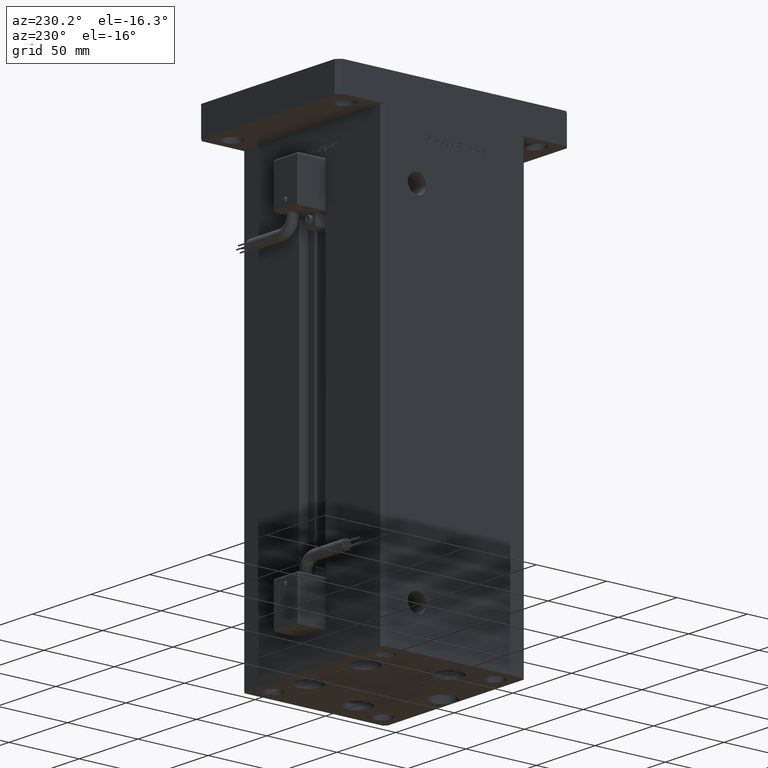
[diagram: clean part render]
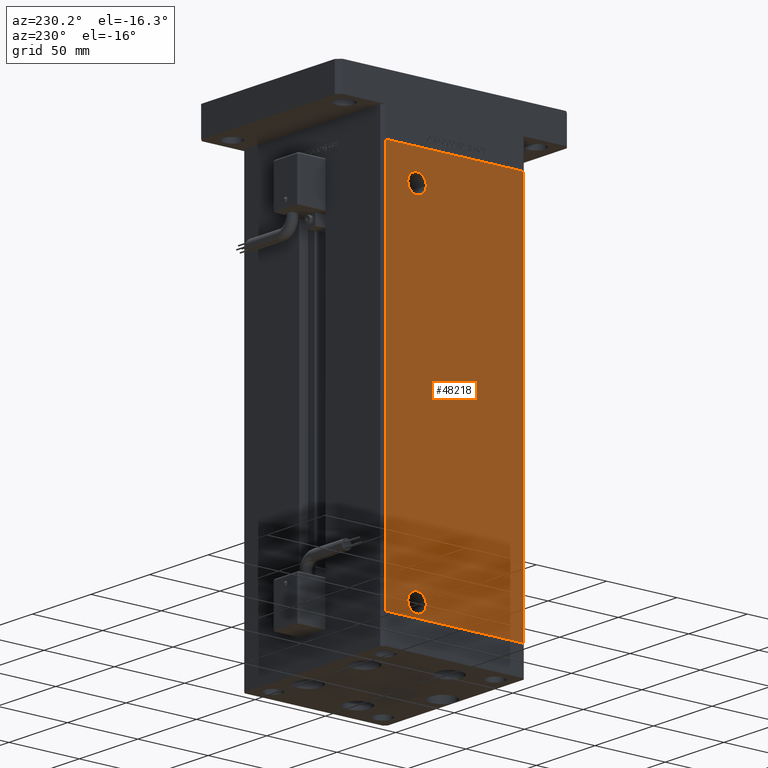
[diagram: same view with one face highlighted and labeled with its STEP entity id]
A machine part, auxiliary view. The second image highlights one B-rep face of the part: STEP entity #48218.
In plain terms, the highlighted planar face has unit normal (1, 0, 0).
Its self-contained STEP definition (entity closure, byte-faithful):
#682 = CARTESIAN_POINT ( 'NONE',  ( -60.00000000000001421, 49.00000000000000000, 268.5000000000000000 ) ) ;
#1014 = VECTOR ( 'NONE', #43434, 1000.000000000000000 ) ;
#1134 = LINE ( 'NONE', #19641, #44845 ) ;
#2334 = AXIS2_PLACEMENT_3D ( 'NONE', #53792, #13624, #31508 ) ;
#3633 = DIRECTION ( 'NONE',  ( 0.000000000000000000, -1.000000000000000000, 0.000000000000000000 ) ) ;
#4017 = LINE ( 'NONE', #26611, #17677 ) ;
#5252 = DIRECTION ( 'NONE',  ( 2.832201593431521726E-16, -1.000000000000000000, 0.000000000000000000 ) ) ;
#5618 = EDGE_LOOP ( 'NONE', ( #57143, #44848 ) ) ;
#5840 = CARTESIAN_POINT ( 'NONE',  ( -60.00000000000000711, 19.91999999999996263, 247.5000000000000000 ) ) ;
#6394 = VERTEX_POINT ( 'NONE', #49049 ) ;
#7297 = DIRECTION ( 'NONE',  ( 2.832201593431521726E-16, -1.000000000000000000, 0.000000000000000000 ) ) ;
#7320 = DIRECTION ( 'NONE',  ( -1.000000000000000000, -2.275047181608927644E-16, 0.000000000000000000 ) ) ;
#7644 = VERTEX_POINT ( 'NONE', #46595 ) ;
#7975 = EDGE_CURVE ( 'NONE', #20874, #7644, #10066, .T. ) ;
#9233 = EDGE_CURVE ( 'NONE', #33323, #6394, #4017, .T. ) ;
#9290 = ORIENTED_EDGE ( 'NONE', *, *, #53695, .F. ) ;
#10066 = CIRCLE ( 'NONE', #28794, 6.580000000000044480 ) ;
#11048 = CARTESIAN_POINT ( 'NONE',  ( -60.00000000000000711, 26.50000000000000711, 247.5000000000000000 ) ) ;
#13624 = DIRECTION ( 'NONE',  ( -1.000000000000000000, -2.275047181608927644E-16, 0.000000000000000000 ) ) ;
#13719 = CIRCLE ( 'NONE', #20300, 6.580000000000044480 ) ;
#13879 = ORIENTED_EDGE ( 'NONE', *, *, #26138, .T. ) ;
#14027 = VERTEX_POINT ( 'NONE', #39365 ) ;
#14054 = ORIENTED_EDGE ( 'NONE', *, *, #16001, .F. ) ;
#15470 = CIRCLE ( 'NONE', #2334, 6.580000000000002736 ) ;
#16001 = EDGE_CURVE ( 'NONE', #24071, #33323, #1134, .T. ) ;
#17253 = CIRCLE ( 'NONE', #21031, 6.580000000000002736 ) ;
#17488 = FACE_BOUND ( 'NONE', #5618, .T. ) ;
#17677 = VECTOR ( 'NONE', #39227, 1000.000000000000000 ) ;
#18864 = AXIS2_PLACEMENT_3D ( 'NONE', #39178, #57088, #35363 ) ;
#19641 = CARTESIAN_POINT ( 'NONE',  ( -60.00000000000001421, 49.00000000000000000, 268.5000000000000000 ) ) ;
#19676 = EDGE_CURVE ( 'NONE', #24071, #14027, #39032, .T. ) ;
#20300 = AXIS2_PLACEMENT_3D ( 'NONE', #11048, #24833, #24551 ) ;
#20874 = VERTEX_POINT ( 'NONE', #5840 ) ;
#21031 = AXIS2_PLACEMENT_3D ( 'NONE', #29606, #7320, #43090 ) ;
#21313 = FACE_OUTER_BOUND ( 'NONE', #24966, .T. ) ;
#22558 = EDGE_CURVE ( 'NONE', #32031, #45638, #17253, .T. ) ;
#23986 = ORIENTED_EDGE ( 'NONE', *, *, #9233, .F. ) ;
#24071 = VERTEX_POINT ( 'NONE', #682 ) ;
#24551 = DIRECTION ( 'NONE',  ( 0.000000000000000000, -1.000000000000000000, 0.000000000000000000 ) ) ;
#24833 = DIRECTION ( 'NONE',  ( -1.000000000000000000, -2.275047181608927644E-16, 0.000000000000000000 ) ) ;
#24966 = EDGE_LOOP ( 'NONE', ( #13879, #23986, #14054, #57404 ) ) ;
#26138 = EDGE_CURVE ( 'NONE', #14027, #6394, #29582, .T. ) ;
#26611 = CARTESIAN_POINT ( 'NONE',  ( -59.99999999999998579, -49.00000000000000000, 268.5000000000000000 ) ) ;
#28794 = AXIS2_PLACEMENT_3D ( 'NONE', #30617, #57322, #3633 ) ;
#29582 = LINE ( 'NONE', #35150, #44513 ) ;
#29606 = CARTESIAN_POINT ( 'NONE',  ( -60.00000000000000711, 26.50000000000000000, 9.000000000000000000 ) ) ;
#30617 = CARTESIAN_POINT ( 'NONE',  ( -60.00000000000000711, 26.50000000000000711, 247.5000000000000000 ) ) ;
#31235 = ORIENTED_EDGE ( 'NONE', *, *, #22558, .F. ) ;
#31508 = DIRECTION ( 'NONE',  ( 0.000000000000000000, -1.000000000000000000, 0.000000000000000000 ) ) ;
#32031 = VERTEX_POINT ( 'NONE', #49440 ) ;
#32927 = CARTESIAN_POINT ( 'NONE',  ( -60.00000000000000711, 19.91999999999999815, 9.000000000000000000 ) ) ;
#32937 = EDGE_CURVE ( 'NONE', #7644, #20874, #13719, .T. ) ;
#33323 = VERTEX_POINT ( 'NONE', #55848 ) ;
#34060 = CARTESIAN_POINT ( 'NONE',  ( -60.00000000000001421, 49.00000000000000000, 268.5000000000000000 ) ) ;
#35150 = CARTESIAN_POINT ( 'NONE',  ( -60.00000000000001421, 49.00000000000000000, 0.000000000000000000 ) ) ;
#35363 = DIRECTION ( 'NONE',  ( -2.832201593431521726E-16, 1.000000000000000000, 0.000000000000000000 ) ) ;
#39032 = LINE ( 'NONE', #34060, #1014 ) ;
#39178 = CARTESIAN_POINT ( 'NONE',  ( -60.00000000000001421, 49.00000000000000000, 268.5000000000000000 ) ) ;
#39227 = DIRECTION ( 'NONE',  ( -0.000000000000000000, -0.000000000000000000, -1.000000000000000000 ) ) ;
#39365 = CARTESIAN_POINT ( 'NONE',  ( -60.00000000000001421, 49.00000000000000000, 0.000000000000000000 ) ) ;
#39737 = FACE_BOUND ( 'NONE', #54452, .T. ) ;
#43090 = DIRECTION ( 'NONE',  ( 0.000000000000000000, -1.000000000000000000, 0.000000000000000000 ) ) ;
#43434 = DIRECTION ( 'NONE',  ( -0.000000000000000000, -0.000000000000000000, -1.000000000000000000 ) ) ;
#44513 = VECTOR ( 'NONE', #7297, 1000.000000000000000 ) ;
#44845 = VECTOR ( 'NONE', #5252, 1000.000000000000000 ) ;
#44848 = ORIENTED_EDGE ( 'NONE', *, *, #32937, .F. ) ;
#45638 = VERTEX_POINT ( 'NONE', #32927 ) ;
#46595 = CARTESIAN_POINT ( 'NONE',  ( -60.00000000000000711, 33.08000000000005514, 247.5000000000000000 ) ) ;
#48218 = ADVANCED_FACE ( 'NONE', ( #39737, #17488, #21313 ), #48262, .F. ) ;
#48262 = PLANE ( 'NONE',  #18864 ) ;
#49049 = CARTESIAN_POINT ( 'NONE',  ( -59.99999999999998579, -49.00000000000000000, 0.000000000000000000 ) ) ;
#49440 = CARTESIAN_POINT ( 'NONE',  ( -60.00000000000000711, 33.08000000000000540, 9.000000000000000000 ) ) ;
#53695 = EDGE_CURVE ( 'NONE', #45638, #32031, #15470, .T. ) ;
#53792 = CARTESIAN_POINT ( 'NONE',  ( -60.00000000000000711, 26.50000000000000000, 9.000000000000000000 ) ) ;
#54452 = EDGE_LOOP ( 'NONE', ( #9290, #31235 ) ) ;
#55848 = CARTESIAN_POINT ( 'NONE',  ( -59.99999999999998579, -49.00000000000000000, 268.5000000000000000 ) ) ;
#57088 = DIRECTION ( 'NONE',  ( 1.000000000000000000, 2.832201593431521726E-16, -0.000000000000000000 ) ) ;
#57143 = ORIENTED_EDGE ( 'NONE', *, *, #7975, .F. ) ;
#57322 = DIRECTION ( 'NONE',  ( -1.000000000000000000, -2.275047181608927644E-16, 0.000000000000000000 ) ) ;
#57404 = ORIENTED_EDGE ( 'NONE', *, *, #19676, .T. ) ;